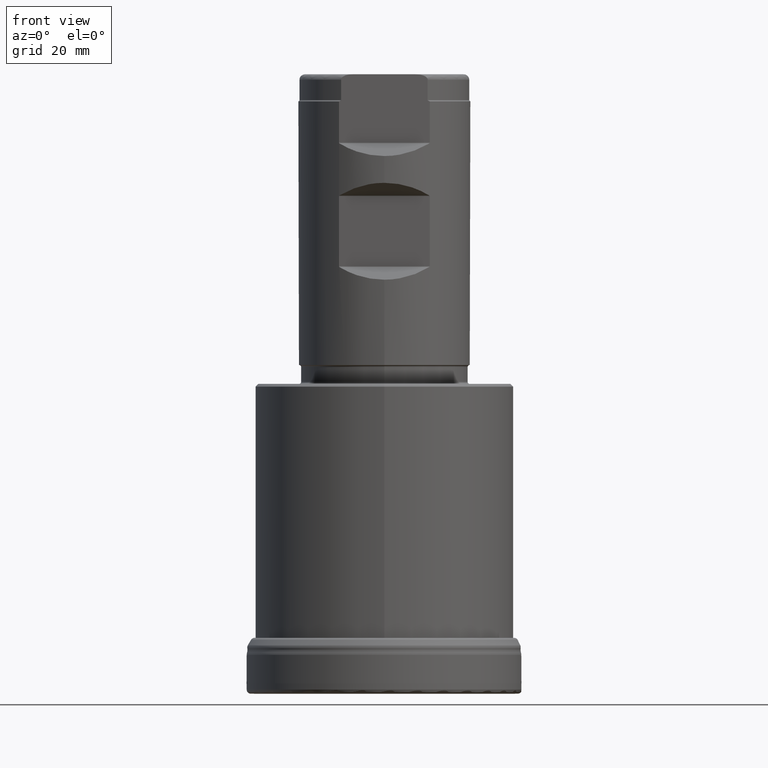
[diagram: clean part render]
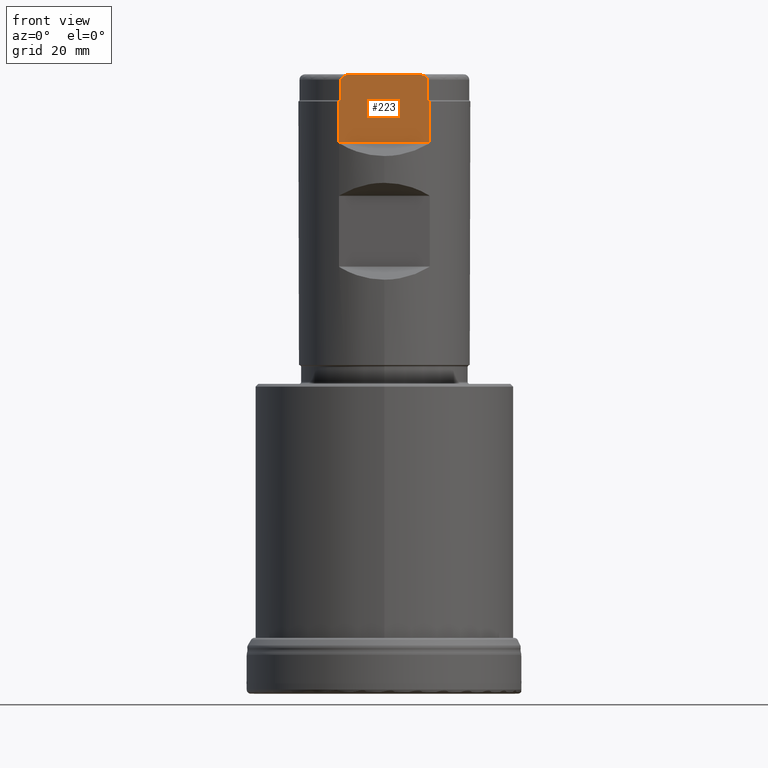
[diagram: same view with one face highlighted and labeled with its STEP entity id]
A machine part, front view. The second image highlights one B-rep face of the part: STEP entity #223.
In plain terms, the highlighted planar face has unit normal (0, -1, 0).
Its self-contained STEP definition (entity closure, byte-faithful):
#184=PLANE('',#1216);
#192=FACE_OUTER_BOUND('',#527,.T.);
#223=ADVANCED_FACE('',(#192),#184,.T.);
#527=EDGE_LOOP('',(#748,#749,#750,#751,#752,#753,#754,#755,#756,#757));
#620=LINE('',#1867,#633);
#621=LINE('',#1871,#634);
#622=LINE('',#1892,#635);
#623=LINE('',#1896,#636);
#624=LINE('',#1903,#637);
#625=LINE('',#2651,#638);
#633=VECTOR('',#1289,1.);
#634=VECTOR('',#1292,1.);
#635=VECTOR('',#1299,1.);
#636=VECTOR('',#1302,1.);
#637=VECTOR('',#1309,1.);
#638=VECTOR('',#1402,1.);
#748=ORIENTED_EDGE('',*,*,#1039,.T.);
#749=ORIENTED_EDGE('',*,*,#980,.F.);
#750=ORIENTED_EDGE('',*,*,#990,.T.);
#751=ORIENTED_EDGE('',*,*,#984,.F.);
#752=ORIENTED_EDGE('',*,*,#993,.F.);
#753=ORIENTED_EDGE('',*,*,#989,.F.);
#754=ORIENTED_EDGE('',*,*,#992,.F.);
#755=ORIENTED_EDGE('',*,*,#986,.F.);
#756=ORIENTED_EDGE('',*,*,#991,.T.);
#757=ORIENTED_EDGE('',*,*,#978,.F.);
#882=VERTEX_POINT('',#1865);
#884=VERTEX_POINT('',#1868);
#885=VERTEX_POINT('',#1870);
#886=VERTEX_POINT('',#1872);
#888=VERTEX_POINT('',#1890);
#889=VERTEX_POINT('',#1891);
#890=VERTEX_POINT('',#1893);
#891=VERTEX_POINT('',#1895);
#893=VERTEX_POINT('',#1901);
#894=VERTEX_POINT('',#1902);
#978=EDGE_CURVE('',#882,#884,#620,.T.);
#980=EDGE_CURVE('',#885,#886,#621,.T.);
#984=EDGE_CURVE('',#889,#890,#622,.T.);
#986=EDGE_CURVE('',#891,#888,#623,.T.);
#989=EDGE_CURVE('',#894,#893,#624,.T.);
#990=EDGE_CURVE('',#885,#890,#1111,.T.);
#991=EDGE_CURVE('',#891,#884,#1112,.T.);
#992=EDGE_CURVE('',#888,#894,#1113,.T.);
#993=EDGE_CURVE('',#893,#889,#1114,.T.);
#1039=EDGE_CURVE('',#882,#886,#625,.T.);
#1111=B_SPLINE_CURVE_WITH_KNOTS('',3,(#1905,#1906,#1907,#1908),
 .UNSPECIFIED.,.F.,.F.,(4,4),(0.,1.),.UNSPECIFIED.);
#1112=B_SPLINE_CURVE_WITH_KNOTS('',3,(#1909,#1910,#1911,#1912),
 .UNSPECIFIED.,.F.,.F.,(4,4),(0.,1.),.UNSPECIFIED.);
#1113=B_SPLINE_CURVE_WITH_KNOTS('',3,(#1914,#1915,#1916,#1917,#1918,#1919,
#1920,#1921),.UNSPECIFIED.,.F.,.F.,(4,2,2,4),(0.,0.249999999999998,0.499999999999997,
1.),.UNSPECIFIED.);
#1114=B_SPLINE_CURVE_WITH_KNOTS('',3,(#1922,#1923,#1924,#1925,#1926,#1927,
#1928,#1929),.UNSPECIFIED.,.F.,.F.,(4,2,2,4),(0.,0.500000000000002,0.750000000000001,
1.),.UNSPECIFIED.);
#1216=AXIS2_PLACEMENT_3D('',#2652,#1403,#1404);
#1289=DIRECTION('',(0.,1.17145536458252E-15,1.));
#1292=DIRECTION('',(0.,-1.17145536458252E-15,-1.));
#1299=DIRECTION('',(0.,-1.17145536458252E-15,-1.));
#1302=DIRECTION('',(0.,1.17145536458252E-15,1.));
#1309=DIRECTION('',(1.,-7.17309531289991E-32,-6.12323399573676E-17));
#1402=DIRECTION('',(1.,-7.17309531289991E-32,-6.12323399573676E-17));
#1403=DIRECTION('',(2.05927208001509E-49,-1.,1.17145536458252E-15));
#1404=DIRECTION('',(6.24500451351651E-17,1.17093834628434E-15,1.));
#1865=CARTESIAN_POINT('',(-8.37291264972948,-13.4873999999999,101.724264068712));
#1867=CARTESIAN_POINT('',(-8.37291264972948,-13.4874,1.57998870842703E-14));
#1868=CARTESIAN_POINT('',(-8.37291264972947,-13.4873999999999,109.3));
#1870=CARTESIAN_POINT('',(8.37291264972947,-13.4873999999999,109.3));
#1871=CARTESIAN_POINT('',(8.37291264972948,-13.4874,1.57998870842703E-14));
#1872=CARTESIAN_POINT('',(8.37291264972948,-13.4873999999999,101.724264068712));
#1890=CARTESIAN_POINT('',(-7.98721893028869,-13.4873999999999,113.299999999989));
#1891=CARTESIAN_POINT('',(7.98721893026602,-13.4873999999999,113.3));
#1892=CARTESIAN_POINT('',(7.98721893026602,-13.4874,1.57998870842703E-14));
#1893=CARTESIAN_POINT('',(7.98721893026602,-13.4873999999999,109.5));
#1895=CARTESIAN_POINT('',(-7.98721893026602,-13.4873999999999,109.5));
#1896=CARTESIAN_POINT('',(-7.98721893026602,-13.4874,1.57998870842703E-14));
#1901=CARTESIAN_POINT('',(5.78322282468843,-13.4873999999999,114.3));
#1902=CARTESIAN_POINT('',(-5.78322282468864,-13.4873999999999,114.3));
#1903=CARTESIAN_POINT('',(-17.5,-13.4873999999999,114.3));
#1905=CARTESIAN_POINT('',(8.37291264972948,-13.4873999999999,109.3));
#1906=CARTESIAN_POINT('',(8.24478103671274,-13.4873999999999,109.3675801451));
#1907=CARTESIAN_POINT('',(8.11622498021636,-13.4873999999999,109.434264780588));
#1908=CARTESIAN_POINT('',(7.98721893026603,-13.4873999999999,109.5));
#1909=CARTESIAN_POINT('',(-7.98721893026603,-13.4873999999999,109.5));
#1910=CARTESIAN_POINT('',(-8.1163023507283,-13.4873999999999,109.434225356332));
#1911=CARTESIAN_POINT('',(-8.24485631090742,-13.4873999999999,109.367540443414));
#1912=CARTESIAN_POINT('',(-8.37291264972949,-13.4873999999999,109.3));
#1914=CARTESIAN_POINT('',(-7.98721893026687,-13.4873999999999,113.299999999988));
#1915=CARTESIAN_POINT('',(-7.98721893027206,-13.4873999999999,113.52020277002));
#1916=CARTESIAN_POINT('',(-7.83736774434978,-13.4873999999999,113.715154682752));
#1917=CARTESIAN_POINT('',(-7.48623082979295,-13.4873999999999,113.980139720299));
#1918=CARTESIAN_POINT('',(-7.2817203242156,-13.4873999999999,114.067554950671));
#1919=CARTESIAN_POINT('',(-6.65729293981297,-13.4873999999999,114.2609297127));
#1920=CARTESIAN_POINT('',(-6.21637245039726,-13.4873999999999,114.3));
#1921=CARTESIAN_POINT('',(-5.78322282468865,-13.4873999999999,114.3));
#1922=CARTESIAN_POINT('',(5.78322282468843,-13.4873999999999,114.3));
#1923=CARTESIAN_POINT('',(6.21394869343175,-13.4873999999999,114.3));
#1924=CARTESIAN_POINT('',(6.65580566004196,-13.4873999999999,114.261664403719));
#1925=CARTESIAN_POINT('',(7.28486381477455,-13.4873999999999,114.06644362587));
#1926=CARTESIAN_POINT('',(7.48748729423048,-13.4873999999999,113.979507582041));
#1927=CARTESIAN_POINT('',(7.83842269980534,-13.4873999999999,113.714040424023));
#1928=CARTESIAN_POINT('',(7.98721893026601,-13.4873999999999,113.522383261353));
#1929=CARTESIAN_POINT('',(7.98721893026602,-13.4873999999999,113.3));
#2651=CARTESIAN_POINT('',(-17.5,-13.4873999999999,101.724264068712));
#2652=CARTESIAN_POINT('',(-17.5,-13.4873999999999,114.3));